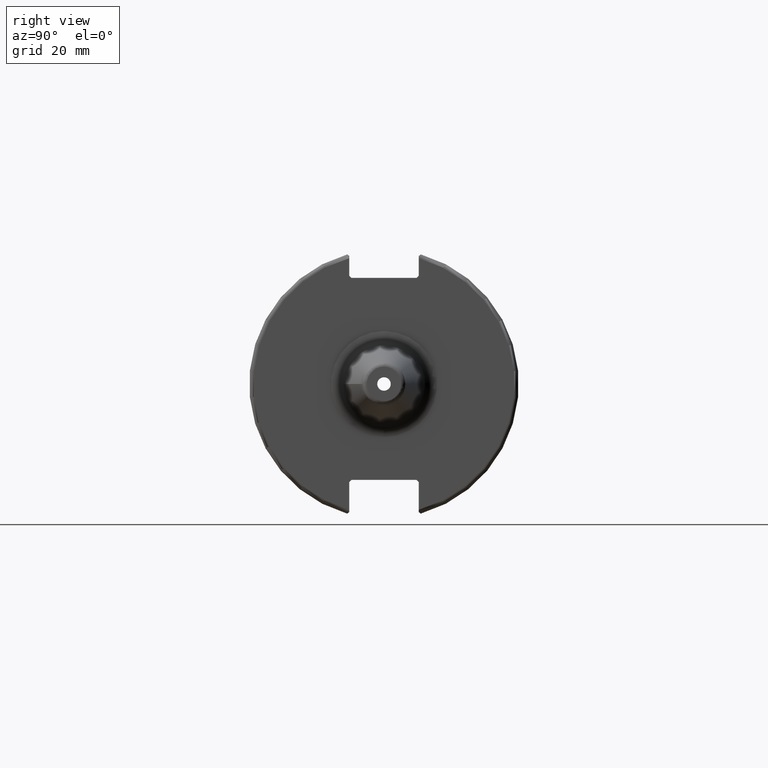
[diagram: clean part render]
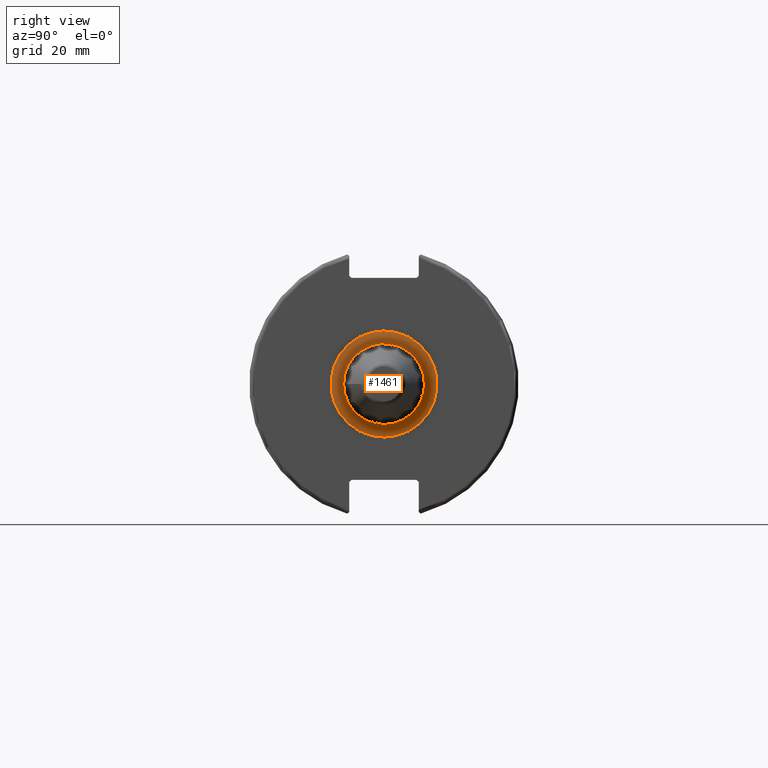
[diagram: same view with one face highlighted and labeled with its STEP entity id]
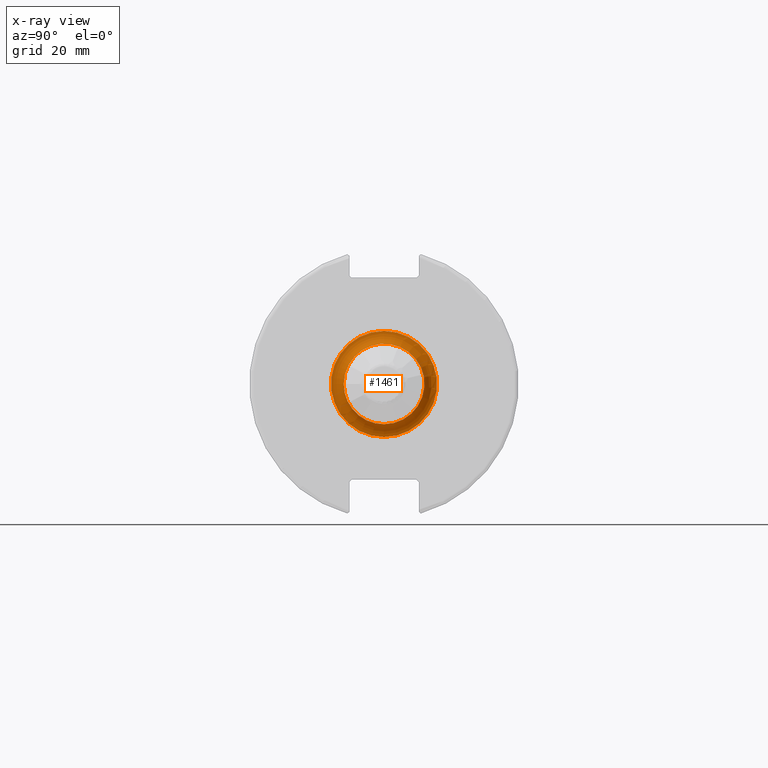
[diagram: x-ray of the same camera — body ghosted, the highlighted face saturated]
A machine part, right view. The second image highlights one B-rep face of the part: STEP entity #1461.
The next image is the same camera in x-ray: the body ghosted, the highlighted face saturated — about 0% of this face is hidden behind the body in this view.
In plain terms, the highlighted toroidal blend (fillet) surface has major radius 12.5 mm and minor (blend) radius 3 mm.
Its self-contained STEP definition (entity closure, byte-faithful):
#361=FACE_OUTER_BOUND('',#447,.T.);
#447=EDGE_LOOP('',(#1004,#1005,#1006,#1007,#1008));
#548=CIRCLE('',#1576,9.5);
#549=CIRCLE('',#1577,3.);
#550=CIRCLE('',#1578,12.5);
#551=CIRCLE('',#1579,9.5);
#618=VERTEX_POINT('',#2201);
#619=VERTEX_POINT('',#2202);
#620=VERTEX_POINT('',#2204);
#770=EDGE_CURVE('',#618,#619,#548,.T.);
#771=EDGE_CURVE('',#619,#620,#549,.T.);
#772=EDGE_CURVE('',#620,#620,#550,.T.);
#773=EDGE_CURVE('',#619,#618,#551,.T.);
#1004=ORIENTED_EDGE('',*,*,#770,.T.);
#1005=ORIENTED_EDGE('',*,*,#771,.T.);
#1006=ORIENTED_EDGE('',*,*,#772,.T.);
#1007=ORIENTED_EDGE('',*,*,#771,.F.);
#1008=ORIENTED_EDGE('',*,*,#773,.T.);
#1451=TOROIDAL_SURFACE('',#1575,12.5,3.);
#1461=ADVANCED_FACE('',(#361),#1451,.F.);
#1575=AXIS2_PLACEMENT_3D('',#2200,#1761,#1762);
#1576=AXIS2_PLACEMENT_3D('',#2203,#1763,#1764);
#1577=AXIS2_PLACEMENT_3D('',#2205,#1765,#1766);
#1578=AXIS2_PLACEMENT_3D('',#2206,#1767,#1768);
#1579=AXIS2_PLACEMENT_3D('',#2207,#1769,#1770);
#1761=DIRECTION('center_axis',(-1.,0.,0.));
#1762=DIRECTION('ref_axis',(0.,0.,1.));
#1763=DIRECTION('center_axis',(-1.,0.,0.));
#1764=DIRECTION('ref_axis',(0.,-1.,-1.22464679914735E-16));
#1765=DIRECTION('center_axis',(0.,-1.,1.22464679914735E-16));
#1766=DIRECTION('ref_axis',(0.,-1.22464679914735E-16,-1.));
#1767=DIRECTION('center_axis',(1.,0.,0.));
#1768=DIRECTION('ref_axis',(0.,-1.,-1.22464679914735E-16));
#1769=DIRECTION('center_axis',(-1.,0.,0.));
#1770=DIRECTION('ref_axis',(0.,-1.,-1.22464679914735E-16));
#2200=CARTESIAN_POINT('Origin',(22.05,0.,0.));
#2201=CARTESIAN_POINT('',(22.05,-9.5,-1.16341445918999E-15));
#2202=CARTESIAN_POINT('',(22.05,-1.16341445918999E-15,-9.5));
#2203=CARTESIAN_POINT('Origin',(22.05,0.,0.));
#2204=CARTESIAN_POINT('',(19.05,-1.53080849893419E-15,-12.5));
#2205=CARTESIAN_POINT('Origin',(22.05,-1.53080849893419E-15,-12.5));
#2206=CARTESIAN_POINT('Origin',(19.05,0.,0.));
#2207=CARTESIAN_POINT('Origin',(22.05,0.,0.));